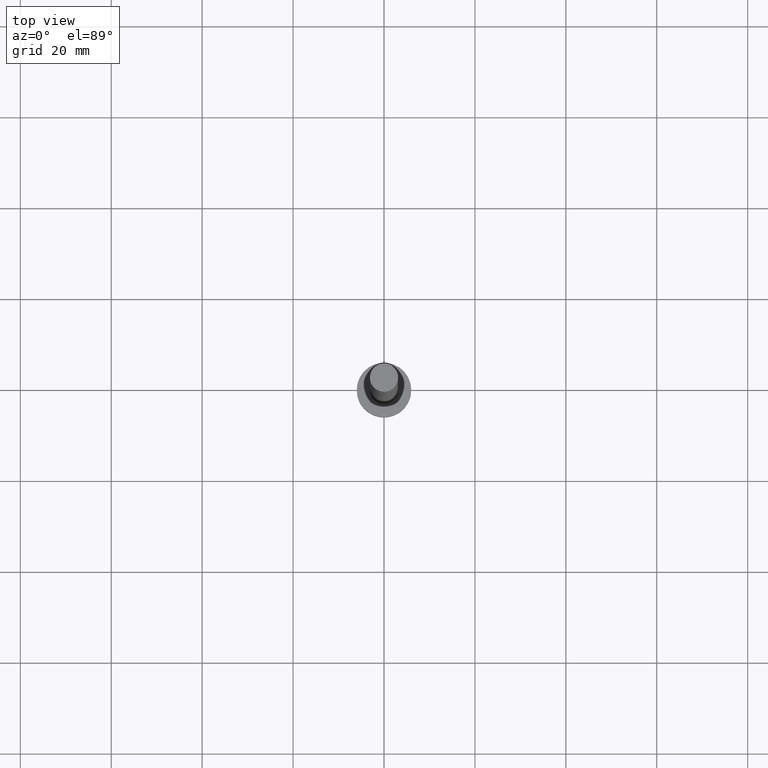
[diagram: clean part render]
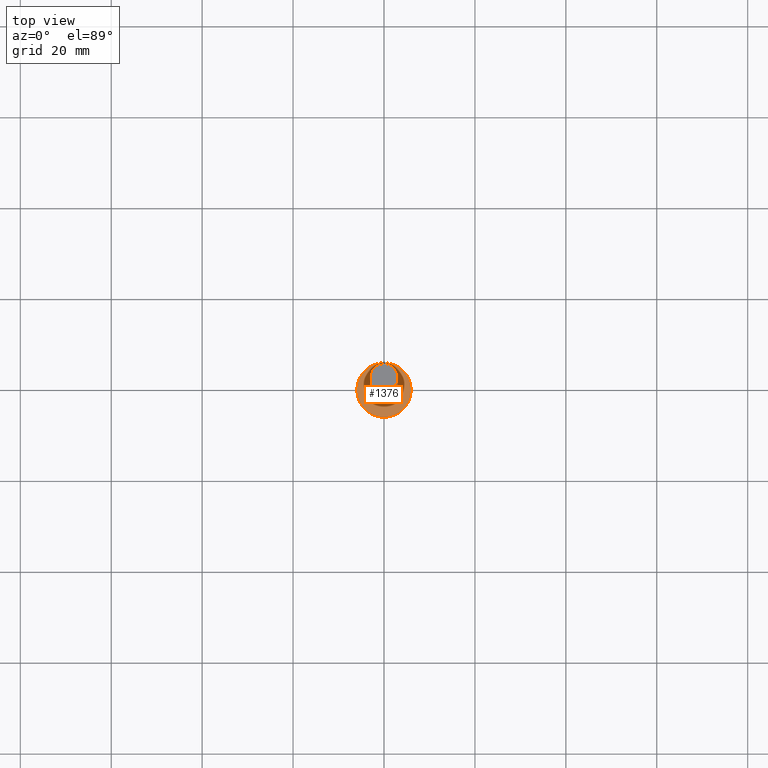
[diagram: same view with one face highlighted and labeled with its STEP entity id]
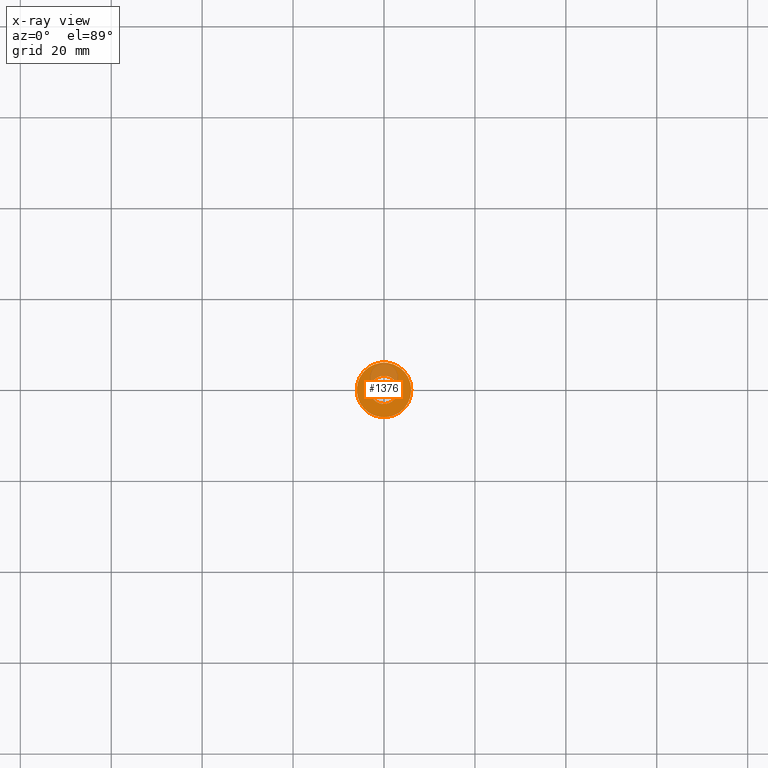
[diagram: x-ray of the same camera — body ghosted, the highlighted face saturated]
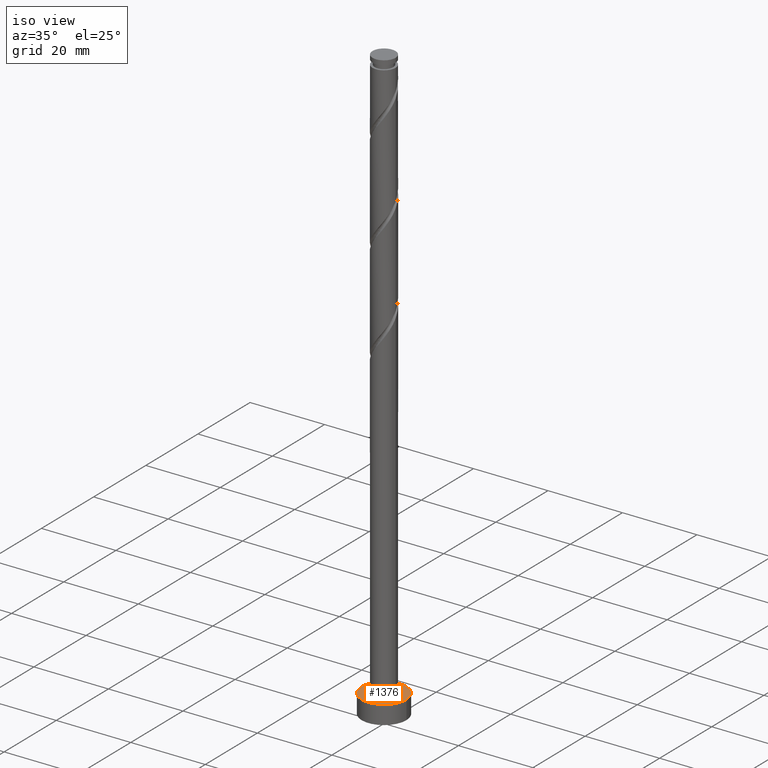
[diagram: same view with one face highlighted and labeled with its STEP entity id]
A machine part, top view. The second image highlights one B-rep face of the part: STEP entity #1376.
The next image is the same camera in x-ray: the body ghosted, the highlighted face saturated — about 20% of this face is hidden behind the body in this view.
A second angle (iso view) of the same face is appended — the face is thin or edge-on in the first view.
In plain terms, the highlighted planar face has unit normal (0, 0, 1).
Its self-contained STEP definition (entity closure, byte-faithful):
#73 = AXIS2_PLACEMENT_3D ( 'NONE', #257, #1379, #250 ) ;
#95 = ORIENTED_EDGE ( 'NONE', *, *, #1212, .F. ) ;
#134 = CIRCLE ( 'NONE', #905, 6.000000000000000888 ) ;
#168 = DIRECTION ( 'NONE',  ( 1.000000000000000000, 0.000000000000000000, 0.000000000000000000 ) ) ;
#208 = EDGE_CURVE ( 'NONE', #1228, #1137, #134, .T. ) ;
#213 = DIRECTION ( 'NONE',  ( 1.000000000000000000, 0.000000000000000000, 0.000000000000000000 ) ) ;
#218 = CARTESIAN_POINT ( 'NONE',  ( 6.000000000000000888, 7.347880794884120722E-16, 5.000000000000000000 ) ) ;
#220 = EDGE_CURVE ( 'NONE', #1447, #398, #480, .T. ) ;
#250 = DIRECTION ( 'NONE',  ( 1.000000000000000000, 0.000000000000000000, 0.000000000000000000 ) ) ;
#252 = FACE_BOUND ( 'NONE', #1071, .T. ) ;
#257 = CARTESIAN_POINT ( 'NONE',  ( 0.000000000000000000, 0.000000000000000000, 5.000000000000000000 ) ) ;
#392 = DIRECTION ( 'NONE',  ( 1.000000000000000000, 0.000000000000000000, -0.000000000000000000 ) ) ;
#398 = VERTEX_POINT ( 'NONE', #1329 ) ;
#480 = CIRCLE ( 'NONE', #1296, 3.100000000000000089 ) ;
#507 = DIRECTION ( 'NONE',  ( 0.000000000000000000, 0.000000000000000000, 1.000000000000000000 ) ) ;
#553 = ORIENTED_EDGE ( 'NONE', *, *, #220, .F. ) ;
#595 = DIRECTION ( 'NONE',  ( 1.000000000000000000, 0.000000000000000000, 0.000000000000000000 ) ) ;
#638 = PLANE ( 'NONE',  #1650 ) ;
#698 = CARTESIAN_POINT ( 'NONE',  ( 0.000000000000000000, 0.000000000000000000, 5.000000000000000000 ) ) ;
#768 = CARTESIAN_POINT ( 'NONE',  ( -6.000000000000000888, 0.000000000000000000, 5.000000000000000000 ) ) ;
#772 = FACE_OUTER_BOUND ( 'NONE', #1409, .T. ) ;
#823 = ORIENTED_EDGE ( 'NONE', *, *, #208, .T. ) ;
#846 = DIRECTION ( 'NONE',  ( 0.000000000000000000, 0.000000000000000000, 1.000000000000000000 ) ) ;
#867 = EDGE_CURVE ( 'NONE', #1137, #1228, #1619, .T. ) ;
#901 = AXIS2_PLACEMENT_3D ( 'NONE', #1332, #940, #213 ) ;
#905 = AXIS2_PLACEMENT_3D ( 'NONE', #1188, #846, #168 ) ;
#940 = DIRECTION ( 'NONE',  ( 0.000000000000000000, 0.000000000000000000, 1.000000000000000000 ) ) ;
#1071 = EDGE_LOOP ( 'NONE', ( #95, #553 ) ) ;
#1137 = VERTEX_POINT ( 'NONE', #218 ) ;
#1185 = CARTESIAN_POINT ( 'NONE',  ( 3.100000000000000089, 3.796405077356794918E-16, 5.000000000000000000 ) ) ;
#1188 = CARTESIAN_POINT ( 'NONE',  ( 0.000000000000000000, 0.000000000000000000, 5.000000000000000000 ) ) ;
#1212 = EDGE_CURVE ( 'NONE', #398, #1447, #1450, .T. ) ;
#1228 = VERTEX_POINT ( 'NONE', #768 ) ;
#1296 = AXIS2_PLACEMENT_3D ( 'NONE', #698, #1560, #595 ) ;
#1329 = CARTESIAN_POINT ( 'NONE',  ( -3.100000000000000089, 0.000000000000000000, 5.000000000000000000 ) ) ;
#1332 = CARTESIAN_POINT ( 'NONE',  ( 0.000000000000000000, 0.000000000000000000, 5.000000000000000000 ) ) ;
#1376 = ADVANCED_FACE ( 'NONE', ( #252, #772 ), #638, .T. ) ;
#1379 = DIRECTION ( 'NONE',  ( 0.000000000000000000, 0.000000000000000000, 1.000000000000000000 ) ) ;
#1399 = ORIENTED_EDGE ( 'NONE', *, *, #867, .T. ) ;
#1409 = EDGE_LOOP ( 'NONE', ( #823, #1399 ) ) ;
#1447 = VERTEX_POINT ( 'NONE', #1185 ) ;
#1450 = CIRCLE ( 'NONE', #73, 3.100000000000000089 ) ;
#1560 = DIRECTION ( 'NONE',  ( 0.000000000000000000, 0.000000000000000000, 1.000000000000000000 ) ) ;
#1619 = CIRCLE ( 'NONE', #901, 6.000000000000000888 ) ;
#1650 = AXIS2_PLACEMENT_3D ( 'NONE', #1658, #507, #392 ) ;
#1658 = CARTESIAN_POINT ( 'NONE',  ( 0.000000000000000000, 0.000000000000000000, 5.000000000000000000 ) ) ;